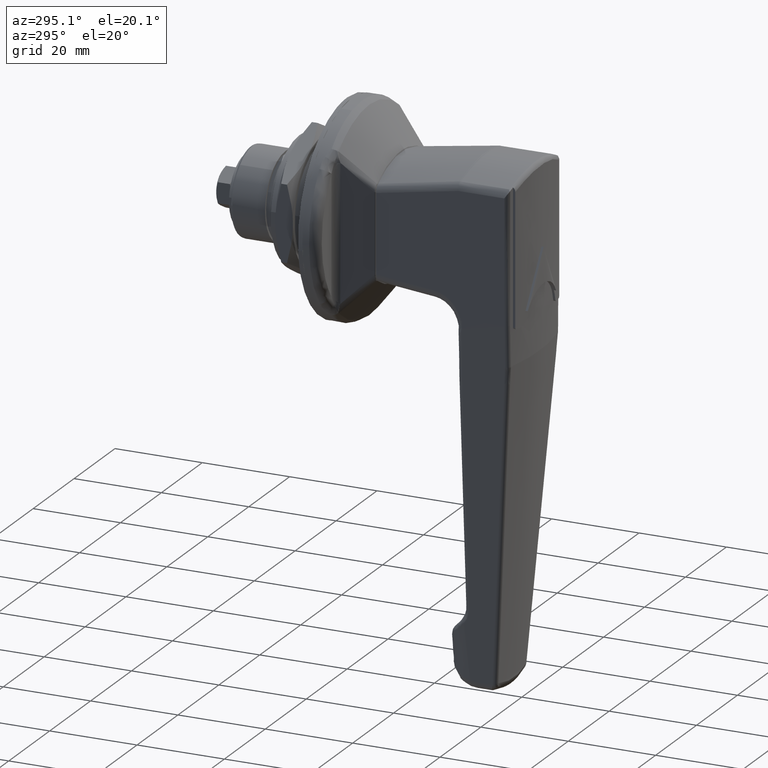
[diagram: clean part render]
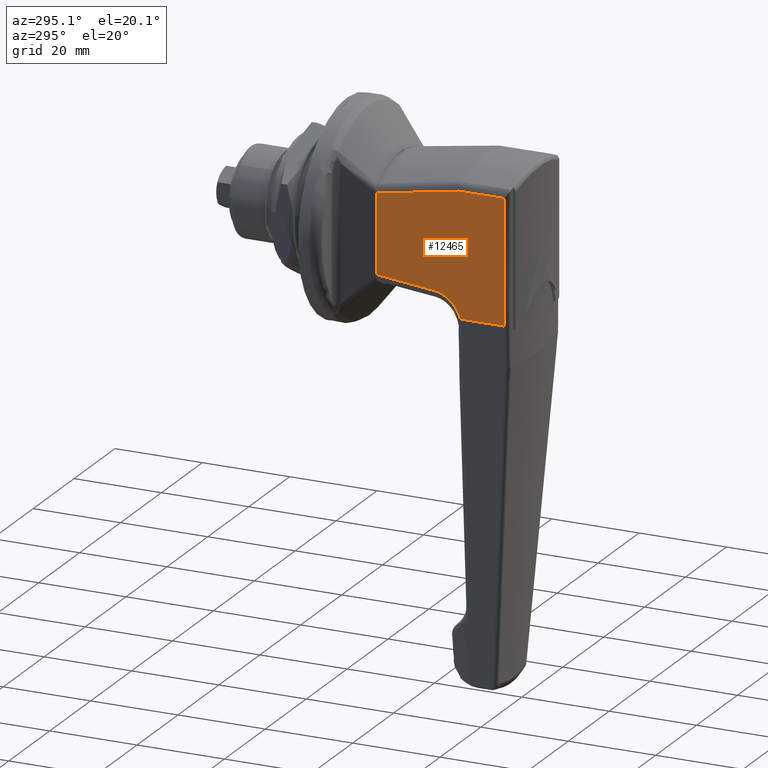
[diagram: same view with one face highlighted and labeled with its STEP entity id]
A machine part, auxiliary view. The second image highlights one B-rep face of the part: STEP entity #12465.
In plain terms, the highlighted face is a freeform B-spline surface patch.
Its self-contained STEP definition (entity closure, byte-faithful):
#4643=CARTESIAN_POINT('',(-25.758472494422051,12.500000000000000,-10.478856147320140));
#4644=VERTEX_POINT('',#4643);
#4658=CARTESIAN_POINT('',(-12.500000000000000,12.500000000000000,-9.011410562829541));
#4659=VERTEX_POINT('',#4658);
#4660=CARTESIAN_POINT('',(-12.500000000000000,12.500000000000000,-9.011410562829541));
#4661=CARTESIAN_POINT('',(-16.918892132413259,12.500000000000000,-9.505968378474359));
#4662=CARTESIAN_POINT('',(-21.338430364427520,12.500000000000000,-9.994688639473488));
#4663=CARTESIAN_POINT('',(-25.758472494422051,12.500000000000000,-10.478856147320140));
#4664=QUASI_UNIFORM_CURVE('',3,(#4660,#4661,#4662,#4663),.UNSPECIFIED.,.F.,.U.);
#4665=EDGE_CURVE('',#4659,#4644,#4664,.T.);
#4759=CARTESIAN_POINT('',(-31.893529268224100,12.500000000000000,-15.848482385090350));
#4760=VERTEX_POINT('',#4759);
#4774=CARTESIAN_POINT('',(-25.758472494422051,12.500000000000000,-10.478856147320140));
#4775=CARTESIAN_POINT('',(-26.838680335447521,12.500000000000000,-10.597342503499091));
#4776=CARTESIAN_POINT('',(-27.850313173530150,12.500000000000000,-11.092809207337909));
#4777=CARTESIAN_POINT('',(-28.806104488530501,12.500000000000000,-11.560926447680030));
#4778=CARTESIAN_POINT('',(-29.612385246617301,12.500000000000000,-12.321388352048990));
#4779=CARTESIAN_POINT('',(-31.047417028619851,12.500000000000000,-13.674870983038989));
#4780=CARTESIAN_POINT('',(-31.893529268224100,12.500000000000000,-15.848482385090350));
#4781=B_SPLINE_CURVE_WITH_KNOTS('',2,(#4774,#4775,#4776,#4777,#4778,#4779,#4780),.UNSPECIFIED.,.F.,.U.,(3,2,2,3),(0.0,0.250000000000000,0.500000000000000,1.0),.UNSPECIFIED.);
#4782=EDGE_CURVE('',#4644,#4760,#4781,.T.);
#7787=CARTESIAN_POINT('',(-41.858712451275153,12.500000000000000,-15.848482385090350));
#7788=VERTEX_POINT('',#7787);
#8033=CARTESIAN_POINT('',(-41.858712451275203,12.500000000000000,12.332614929181240));
#8034=VERTEX_POINT('',#8033);
#8054=CARTESIAN_POINT('',(-41.858712451275153,12.500000000000000,-15.848482385090350));
#8055=CARTESIAN_POINT('',(-41.858712451275203,12.500000000000000,12.332614929181240));
#8056=QUASI_UNIFORM_CURVE('',1,(#8054,#8055),.UNSPECIFIED.,.F.,.U.);
#8057=EDGE_CURVE('',#7788,#8034,#8056,.T.);
#8501=CARTESIAN_POINT('',(-31.397209567573199,12.500000000000000,12.332614929181220));
#8502=VERTEX_POINT('',#8501);
#8627=CARTESIAN_POINT('',(-12.500000000000000,12.500000000000000,8.994391568174301));
#8628=VERTEX_POINT('',#8627);
#8651=CARTESIAN_POINT('',(-31.397209567573199,12.500000000000000,12.332614929181220));
#8652=CARTESIAN_POINT('',(-28.245791829713198,12.500000000000000,11.786949721332149));
#8653=CARTESIAN_POINT('',(-25.095151900969459,12.500000000000000,11.236831968091311));
#8654=CARTESIAN_POINT('',(-18.795878208030999,12.500000000000000,10.125120313837209));
#8655=CARTESIAN_POINT('',(-15.647261801330060,12.500000000000000,9.563549309974155));
#8656=CARTESIAN_POINT('',(-12.500000000000000,12.500000000000000,8.994391568174301));
#8657=B_SPLINE_CURVE_WITH_KNOTS('',3,(#8651,#8652,#8653,#8654,#8655,#8656),.UNSPECIFIED.,.F.,.U.,(4,2,4),(0.0,0.500000000000000,1.0),.UNSPECIFIED.);
#8658=EDGE_CURVE('',#8502,#8628,#8657,.T.);
#8695=CARTESIAN_POINT('',(-41.858712451275203,12.500000000000000,12.332614929181240));
#8696=CARTESIAN_POINT('',(-31.397209567573199,12.500000000000000,12.332614929181220));
#8697=QUASI_UNIFORM_CURVE('',1,(#8695,#8696),.UNSPECIFIED.,.F.,.U.);
#8698=EDGE_CURVE('',#8034,#8502,#8697,.T.);
#12092=CARTESIAN_POINT('',(-12.500000000000000,12.500000000000000,8.994391568174301));
#12093=CARTESIAN_POINT('',(-12.500000000000000,12.500000000000000,-9.011410562829541));
#12094=QUASI_UNIFORM_CURVE('',1,(#12092,#12093),.UNSPECIFIED.,.F.,.U.);
#12095=EDGE_CURVE('',#8628,#4659,#12094,.T.);
#12297=CARTESIAN_POINT('',(-31.893529268224100,12.500000000000000,-15.848482385090350));
#12298=CARTESIAN_POINT('',(-41.858712451275153,12.500000000000000,-15.848482385090350));
#12299=QUASI_UNIFORM_CURVE('',1,(#12297,#12298),.UNSPECIFIED.,.F.,.U.);
#12300=EDGE_CURVE('',#4760,#7788,#12299,.T.);
#12451=CARTESIAN_POINT('',(-11.033532474851629,12.500000000000000,-17.256127876773810));
#12452=CARTESIAN_POINT('',(-43.325178663986847,12.500000000000000,-17.256127876773810));
#12453=CARTESIAN_POINT('',(-11.033532474851629,12.500000000000000,13.740261428699259));
#12454=CARTESIAN_POINT('',(-43.325178663986847,12.500000000000000,13.740261428699259));
#12455=B_SPLINE_SURFACE_WITH_KNOTS('',1,1,((#12451,#12453),(#12452,#12454)),.UNSPECIFIED.,.F.,.F.,.U.,(2,2),(2,2),(0.0,32.291646189135221),(0.0,30.996389305473070),.UNSPECIFIED.);
#12456=ORIENTED_EDGE('',*,*,#12095,.T.);
#12457=ORIENTED_EDGE('',*,*,#4665,.T.);
#12458=ORIENTED_EDGE('',*,*,#4782,.T.);
#12459=ORIENTED_EDGE('',*,*,#12300,.T.);
#12460=ORIENTED_EDGE('',*,*,#8057,.T.);
#12461=ORIENTED_EDGE('',*,*,#8698,.T.);
#12462=ORIENTED_EDGE('',*,*,#8658,.T.);
#12463=EDGE_LOOP('',(#12456,#12457,#12458,#12459,#12460,#12461,#12462));
#12464=FACE_OUTER_BOUND('',#12463,.T.);
#12465=ADVANCED_FACE('',(#12464),#12455,.T.);